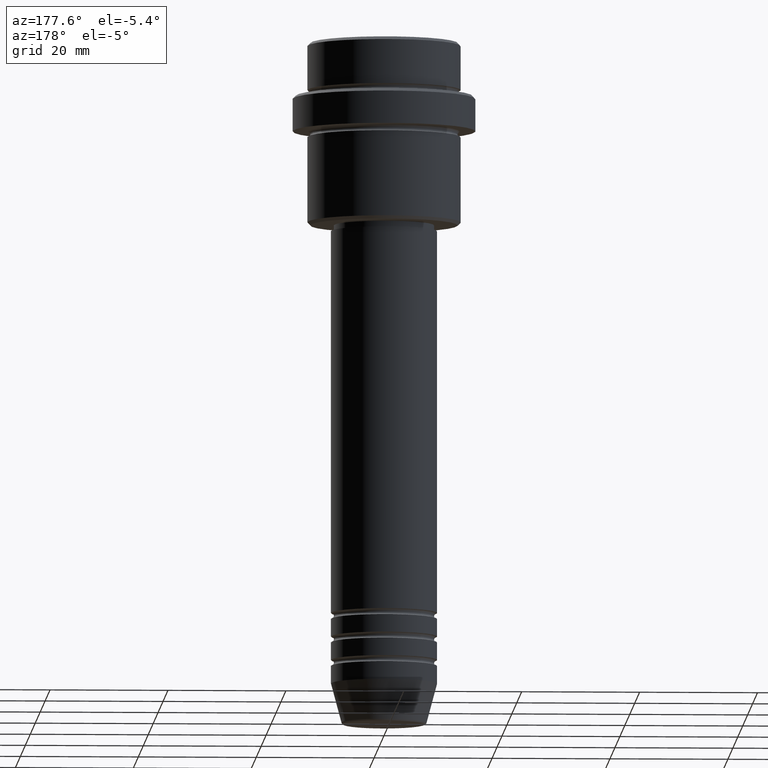
[diagram: clean part render]
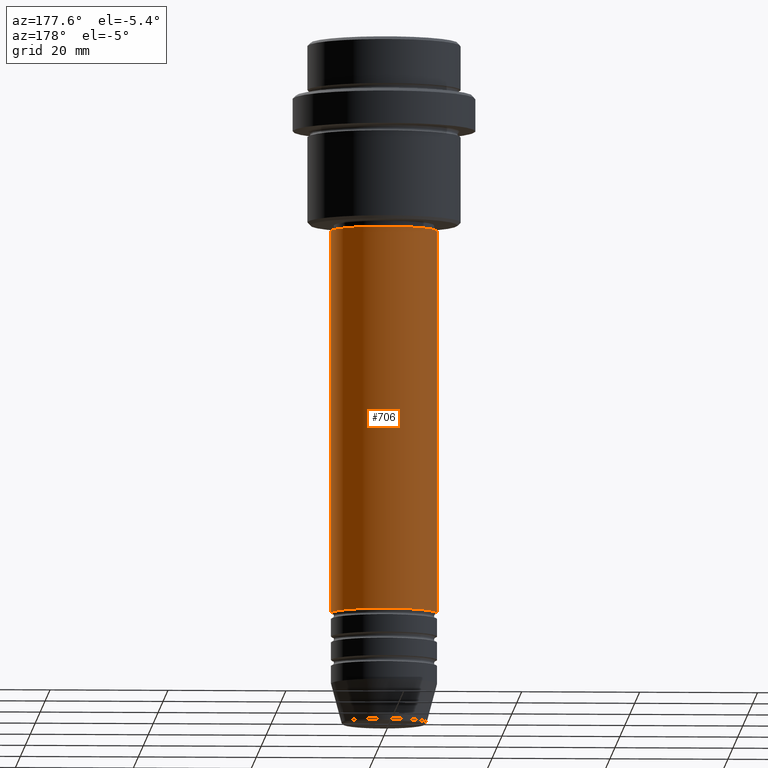
[diagram: same view with one face highlighted and labeled with its STEP entity id]
A machine part, auxiliary view. The second image highlights one B-rep face of the part: STEP entity #706.
In plain terms, the highlighted cylindrical surface (partial cylindrical patch) has radius 9 mm, axis along (-0, -0, 1).
Its self-contained STEP definition (entity closure, byte-faithful):
#31 = CARTESIAN_POINT ( 'NONE',  ( 0.000000000000000000, 0.000000000000000000, -96.99999999999988631 ) ) ;
#58 = CARTESIAN_POINT ( 'NONE',  ( -9.000000000000001776, 1.102182119232617911E-15, 0.000000000000000000 ) ) ;
#69 = DIRECTION ( 'NONE',  ( -0.000000000000000000, -0.000000000000000000, 1.000000000000000000 ) ) ;
#77 = CARTESIAN_POINT ( 'NONE',  ( 9.000000000000001776, 0.000000000000000000, 0.000000000000000000 ) ) ;
#78 = ORIENTED_EDGE ( 'NONE', *, *, #1160, .F. ) ;
#130 = CARTESIAN_POINT ( 'NONE',  ( -9.000000000000001776, 1.102182119232617911E-15, -31.99999999999997868 ) ) ;
#147 = AXIS2_PLACEMENT_3D ( 'NONE', #738, #742, #751 ) ;
#164 = EDGE_LOOP ( 'NONE', ( #754, #259, #179, #78 ) ) ;
#170 = CARTESIAN_POINT ( 'NONE',  ( -9.000000000000000000, 1.102182119232617714E-15, -96.99999999999988631 ) ) ;
#171 = AXIS2_PLACEMENT_3D ( 'NONE', #31, #908, #671 ) ;
#179 = ORIENTED_EDGE ( 'NONE', *, *, #648, .F. ) ;
#192 = DIRECTION ( 'NONE',  ( 1.000000000000000000, 0.000000000000000000, 0.000000000000000000 ) ) ;
#209 = VERTEX_POINT ( 'NONE', #130 ) ;
#259 = ORIENTED_EDGE ( 'NONE', *, *, #615, .T. ) ;
#306 = EDGE_CURVE ( 'NONE', #462, #644, #1332, .T. ) ;
#351 = CIRCLE ( 'NONE', #1274, 9.000000000000001776 ) ;
#385 = DIRECTION ( 'NONE',  ( -0.000000000000000000, -0.000000000000000000, 1.000000000000000000 ) ) ;
#462 = VERTEX_POINT ( 'NONE', #909 ) ;
#504 = CYLINDRICAL_SURFACE ( 'NONE', #147, 9.000000000000001776 ) ;
#520 = CARTESIAN_POINT ( 'NONE',  ( 0.000000000000000000, 0.000000000000000000, -31.99999999999997868 ) ) ;
#567 = VECTOR ( 'NONE', #943, 1000.000000000000000 ) ;
#614 = LINE ( 'NONE', #77, #1095 ) ;
#615 = EDGE_CURVE ( 'NONE', #644, #209, #732, .T. ) ;
#644 = VERTEX_POINT ( 'NONE', #170 ) ;
#648 = EDGE_CURVE ( 'NONE', #864, #209, #351, .T. ) ;
#671 = DIRECTION ( 'NONE',  ( 1.000000000000000000, 0.000000000000000000, 0.000000000000000000 ) ) ;
#706 = ADVANCED_FACE ( 'NONE', ( #842 ), #504, .T. ) ;
#732 = LINE ( 'NONE', #58, #567 ) ;
#738 = CARTESIAN_POINT ( 'NONE',  ( 0.000000000000000000, 0.000000000000000000, 0.000000000000000000 ) ) ;
#742 = DIRECTION ( 'NONE',  ( -0.000000000000000000, -0.000000000000000000, 1.000000000000000000 ) ) ;
#751 = DIRECTION ( 'NONE',  ( 1.000000000000000000, 0.000000000000000000, 0.000000000000000000 ) ) ;
#754 = ORIENTED_EDGE ( 'NONE', *, *, #306, .T. ) ;
#842 = FACE_OUTER_BOUND ( 'NONE', #164, .T. ) ;
#864 = VERTEX_POINT ( 'NONE', #894 ) ;
#894 = CARTESIAN_POINT ( 'NONE',  ( 9.000000000000001776, 0.000000000000000000, -31.99999999999997868 ) ) ;
#908 = DIRECTION ( 'NONE',  ( -0.000000000000000000, -0.000000000000000000, 1.000000000000000000 ) ) ;
#909 = CARTESIAN_POINT ( 'NONE',  ( 9.000000000000000000, 0.000000000000000000, -96.99999999999988631 ) ) ;
#943 = DIRECTION ( 'NONE',  ( -0.000000000000000000, -0.000000000000000000, 1.000000000000000000 ) ) ;
#1095 = VECTOR ( 'NONE', #69, 1000.000000000000000 ) ;
#1160 = EDGE_CURVE ( 'NONE', #462, #864, #614, .T. ) ;
#1274 = AXIS2_PLACEMENT_3D ( 'NONE', #520, #385, #192 ) ;
#1332 = CIRCLE ( 'NONE', #171, 9.000000000000000000 ) ;